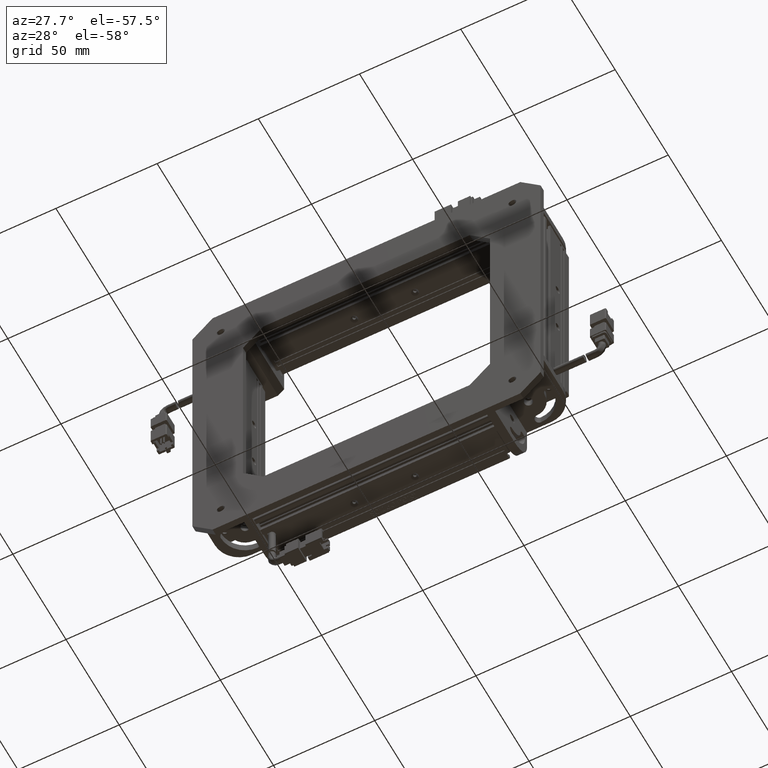
[diagram: clean part render]
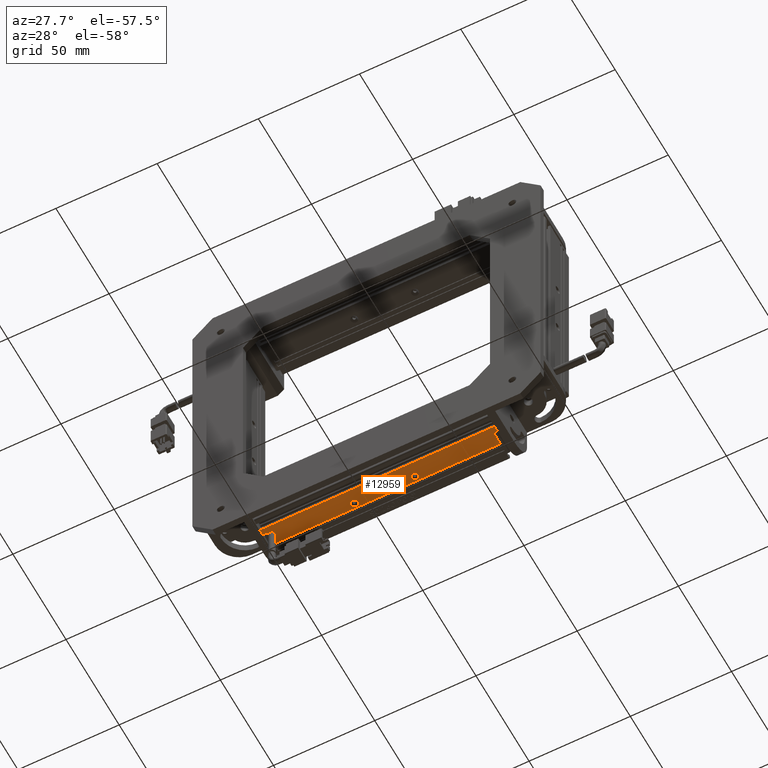
[diagram: same view with one face highlighted and labeled with its STEP entity id]
A machine part, auxiliary view. The second image highlights one B-rep face of the part: STEP entity #12959.
In plain terms, the highlighted planar face has unit normal (0, 0, 1).
Its self-contained STEP definition (entity closure, byte-faithful):
#2895 = DIRECTION ( 'NONE',  ( -1.003956566252521000E-014, -5.551115123125887500E-017, -1.000000000000000000 ) ) ;
#3169 = EDGE_CURVE ( 'NONE', #122555, #135468, #104343, .T. ) ;
#6396 = LINE ( 'NONE', #10045, #114449 ) ;
#6655 = DIRECTION ( 'NONE',  ( 1.000000000000000000, -8.101325669373171900E-016, -1.003956566252521000E-014 ) ) ;
#7725 = VERTEX_POINT ( 'NONE', #17122 ) ;
#8130 = VERTEX_POINT ( 'NONE', #74053 ) ;
#9738 = EDGE_CURVE ( 'NONE', #36482, #61213, #125328, .T. ) ;
#10045 = CARTESIAN_POINT ( 'NONE',  ( -58.00000000000089500, -2.506934854693828800, -85.49999999999916200 ) ) ;
#10047 = ORIENTED_EDGE ( 'NONE', *, *, #42712, .F. ) ;
#11180 = ORIENTED_EDGE ( 'NONE', *, *, #24090, .F. ) ;
#12082 = VECTOR ( 'NONE', #110103, 1000.000000000000000 ) ;
#12959 = ADVANCED_FACE ( 'NONE', ( #130936, #50649, #103095 ), #34821, .F. ) ;
#13569 = CARTESIAN_POINT ( 'NONE',  ( -56.00000000000090900, -2.506934854693830600, -85.49999999999919000 ) ) ;
#14313 = CARTESIAN_POINT ( 'NONE',  ( 57.99999999999910500, -2.506934854693923000, -85.50000000000032700 ) ) ;
#14409 = VERTEX_POINT ( 'NONE', #91813 ) ;
#16311 = ORIENTED_EDGE ( 'NONE', *, *, #23680, .F. ) ;
#16888 = EDGE_CURVE ( 'NONE', #93573, #57633, #92367, .T. ) ;
#17122 = CARTESIAN_POINT ( 'NONE',  ( 16.80000000005887600, 14.10000000000004200, -85.49999999990851100 ) ) ;
#17136 = AXIS2_PLACEMENT_3D ( 'NONE', #65618, #2895, #76196 ) ;
#17560 = CARTESIAN_POINT ( 'NONE',  ( -58.00000000000088800, 7.200000000000105900, -85.49999999999916200 ) ) ;
#21406 = DIRECTION ( 'NONE',  ( -1.003956566252521000E-014, -5.551115123125887500E-017, -1.000000000000000000 ) ) ;
#21505 = EDGE_LOOP ( 'NONE', ( #126505, #135773, #121589, #16311, #11180, #126447, #69433, #80629, #31760, #118261, #37792, #30909 ) ) ;
#23680 = EDGE_CURVE ( 'NONE', #88825, #57633, #90757, .T. ) ;
#24090 = EDGE_CURVE ( 'NONE', #58901, #88825, #103606, .T. ) ;
#24568 = CARTESIAN_POINT ( 'NONE',  ( 57.99999999999910500, -2.506934854693923000, -85.50000000000032700 ) ) ;
#24834 = DIRECTION ( 'NONE',  ( 1.000000000000000000, -8.101325669373171900E-016, -1.003956566252521000E-014 ) ) ;
#25133 = AXIS2_PLACEMENT_3D ( 'NONE', #45668, #118878, #56197 ) ;
#25765 = CARTESIAN_POINT ( 'NONE',  ( 14.99999999999911700, 14.10000000000004400, -85.49999999990849600 ) ) ;
#25842 = EDGE_CURVE ( 'NONE', #34037, #46350, #6396, .T. ) ;
#26061 = VECTOR ( 'NONE', #59420, 1000.000000000000000 ) ;
#27950 = EDGE_LOOP ( 'NONE', ( #130006, #120719 ) ) ;
#29985 = CARTESIAN_POINT ( 'NONE',  ( -56.00000000000088800, 13.55000000000010600, -85.49999999999917600 ) ) ;
#30909 = ORIENTED_EDGE ( 'NONE', *, *, #3169, .F. ) ;
#31416 = VERTEX_POINT ( 'NONE', #107962 ) ;
#31760 = ORIENTED_EDGE ( 'NONE', *, *, #101704, .F. ) ;
#31903 = CARTESIAN_POINT ( 'NONE',  ( 57.99999999999912600, 9.900000000000007500, -85.50000000000032700 ) ) ;
#31924 = CARTESIAN_POINT ( 'NONE',  ( -56.00000000000090900, -2.506934854693830600, -85.49999999999919000 ) ) ;
#33230 = CARTESIAN_POINT ( 'NONE',  ( 55.99999999999913300, 16.40000000000001300, -85.50000000000031300 ) ) ;
#34037 = VERTEX_POINT ( 'NONE', #72678 ) ;
#34821 = PLANE ( 'NONE',  #97580 ) ;
#35387 = AXIS2_PLACEMENT_3D ( 'NONE', #108241, #45519, #118739 ) ;
#36222 = DIRECTION ( 'NONE',  ( -1.000000000000000000, 9.637352643995668300E-016, 7.709882115196534600E-015 ) ) ;
#36482 = VERTEX_POINT ( 'NONE', #132180 ) ;
#37311 = CARTESIAN_POINT ( 'NONE',  ( -56.00000000000088800, 13.55000000000010600, -85.49999999999917600 ) ) ;
#37792 = ORIENTED_EDGE ( 'NONE', *, *, #86611, .T. ) ;
#42712 = EDGE_CURVE ( 'NONE', #61213, #36482, #134880, .T. ) ;
#43490 = LINE ( 'NONE', #119293, #99239 ) ;
#45084 = AXIS2_PLACEMENT_3D ( 'NONE', #84159, #21406, #94724 ) ;
#45092 = DIRECTION ( 'NONE',  ( -8.101325669373166000E-016, -1.000000000000000000, 5.551115123126701000E-017 ) ) ;
#45519 = DIRECTION ( 'NONE',  ( -1.003956566252521000E-014, -5.551115123125887500E-017, -1.000000000000000000 ) ) ;
#45668 = CARTESIAN_POINT ( 'NONE',  ( -54.45000000000088400, 11.90000000000010200, -85.49999999999919000 ) ) ;
#46350 = VERTEX_POINT ( 'NONE', #17560 ) ;
#47206 = VERTEX_POINT ( 'NONE', #114059 ) ;
#47883 = AXIS2_PLACEMENT_3D ( 'NONE', #25765, #99040, #36222 ) ;
#50649 = FACE_OUTER_BOUND ( 'NONE', #21505, .T. ) ;
#52077 = DIRECTION ( 'NONE',  ( -8.101325669373166000E-016, -1.000000000000000000, 5.551115123126701000E-017 ) ) ;
#52503 = EDGE_CURVE ( 'NONE', #122555, #8130, #106582, .T. ) ;
#53872 = LINE ( 'NONE', #69544, #26061 ) ;
#56197 = DIRECTION ( 'NONE',  ( 0.0000000000000000000, 1.000000000000000000, 0.0000000000000000000 ) ) ;
#57633 = VERTEX_POINT ( 'NONE', #29985 ) ;
#57912 = LINE ( 'NONE', #122024, #113575 ) ;
#58175 = EDGE_CURVE ( 'NONE', #14409, #58901, #131545, .T. ) ;
#58901 = VERTEX_POINT ( 'NONE', #33230 ) ;
#59420 = DIRECTION ( 'NONE',  ( 1.000000000000000000, -8.101325669373171900E-016, -1.003956566252521000E-014 ) ) ;
#61213 = VERTEX_POINT ( 'NONE', #87057 ) ;
#65618 = CARTESIAN_POINT ( 'NONE',  ( -15.00000000000088300, 14.10000000000007200, -85.49999999997867000 ) ) ;
#69224 = VECTOR ( 'NONE', #97838, 1000.000000000000000 ) ;
#69433 = ORIENTED_EDGE ( 'NONE', *, *, #85864, .T. ) ;
#69544 = CARTESIAN_POINT ( 'NONE',  ( 57.99999999999911200, 9.900000000000009200, -85.50000000000032700 ) ) ;
#70005 = CIRCLE ( 'NONE', #47883, 1.800000000059753800 ) ;
#70323 = CARTESIAN_POINT ( 'NONE',  ( 57.99999999999911900, 16.40000000000001300, -85.50000000000032700 ) ) ;
#72678 = CARTESIAN_POINT ( 'NONE',  ( -58.00000000000088800, 9.900000000000101600, -85.49999999999916200 ) ) ;
#74053 = CARTESIAN_POINT ( 'NONE',  ( -54.45000000000088400, 10.25000000000010100, -85.49999999999919000 ) ) ;
#75281 = CARTESIAN_POINT ( 'NONE',  ( -56.00000000000090200, 9.900000000000099800, -85.49999999999919000 ) ) ;
#76196 = DIRECTION ( 'NONE',  ( -1.000000000000000000, 9.637352644373061300E-016, 7.709882115498449000E-015 ) ) ;
#80629 = ORIENTED_EDGE ( 'NONE', *, *, #122374, .F. ) ;
#84159 = CARTESIAN_POINT ( 'NONE',  ( -15.00000000000088300, 14.10000000000007200, -85.49999999997867000 ) ) ;
#85706 = VERTEX_POINT ( 'NONE', #31903 ) ;
#85864 = EDGE_CURVE ( 'NONE', #14409, #85706, #43490, .T. ) ;
#86078 = ORIENTED_EDGE ( 'NONE', *, *, #9738, .F. ) ;
#86611 = EDGE_CURVE ( 'NONE', #34037, #135468, #53872, .T. ) ;
#86887 = EDGE_CURVE ( 'NONE', #93573, #8130, #96367, .T. ) ;
#87057 = CARTESIAN_POINT ( 'NONE',  ( -13.20000000001161000, 14.10000000000007100, -85.49999999997868400 ) ) ;
#87548 = DIRECTION ( 'NONE',  ( 1.003956566252521000E-014, 5.551115123125887500E-017, 1.000000000000000000 ) ) ;
#88196 = DIRECTION ( 'NONE',  ( 1.000000000000000000, -8.101325669373171900E-016, -1.003956566252521000E-014 ) ) ;
#88825 = VERTEX_POINT ( 'NONE', #112360 ) ;
#90757 = LINE ( 'NONE', #31924, #115205 ) ;
#91813 = CARTESIAN_POINT ( 'NONE',  ( 55.99999999999912600, 9.900000000000009200, -85.50000000000029800 ) ) ;
#92367 = LINE ( 'NONE', #37311, #12082 ) ;
#93573 = VERTEX_POINT ( 'NONE', #127375 ) ;
#94724 = DIRECTION ( 'NONE',  ( -1.000000000000000000, 9.637352644373061300E-016, 7.709882115498449000E-015 ) ) ;
#96367 = CIRCLE ( 'NONE', #25133, 1.650000000000000400 ) ;
#97580 = AXIS2_PLACEMENT_3D ( 'NONE', #14313, #87548, #24834 ) ;
#97838 = DIRECTION ( 'NONE',  ( 8.101325669373166000E-016, 1.000000000000000000, -5.551115123126701000E-017 ) ) ;
#98150 = CIRCLE ( 'NONE', #35387, 1.800000000059753800 ) ;
#99040 = DIRECTION ( 'NONE',  ( -1.003956566252521000E-014, -5.551115123125887500E-017, -1.000000000000000000 ) ) ;
#99239 = VECTOR ( 'NONE', #88196, 1000.000000000000000 ) ;
#100973 = CARTESIAN_POINT ( 'NONE',  ( -56.00000000000090200, 10.25000000000010100, -85.49999999999917600 ) ) ;
#101704 = EDGE_CURVE ( 'NONE', #46350, #31416, #57912, .T. ) ;
#101902 = DIRECTION ( 'NONE',  ( -1.000000000000000000, 8.101325669373171900E-016, 1.003956566252521000E-014 ) ) ;
#103095 = FACE_BOUND ( 'NONE', #27950, .T. ) ;
#103101 = CARTESIAN_POINT ( 'NONE',  ( 55.99999999999911200, -2.506934854693921200, -85.50000000000031300 ) ) ;
#103606 = LINE ( 'NONE', #70323, #128104 ) ;
#104343 = LINE ( 'NONE', #13569, #122319 ) ;
#106220 = EDGE_LOOP ( 'NONE', ( #86078, #10047 ) ) ;
#106582 = LINE ( 'NONE', #106738, #127805 ) ;
#106738 = CARTESIAN_POINT ( 'NONE',  ( -56.00000000000089500, 10.25000000000010100, -85.49999999999917600 ) ) ;
#107962 = CARTESIAN_POINT ( 'NONE',  ( 57.99999999999911200, 7.200000000000011700, -85.50000000000032700 ) ) ;
#108241 = CARTESIAN_POINT ( 'NONE',  ( 14.99999999999911700, 14.10000000000004400, -85.49999999990849600 ) ) ;
#110103 = DIRECTION ( 'NONE',  ( -1.000000000000000000, 3.048485439165441600E-015, 1.003956566252521000E-014 ) ) ;
#112360 = CARTESIAN_POINT ( 'NONE',  ( -56.00000000000088800, 16.40000000000010200, -85.49999999999919000 ) ) ;
#113575 = VECTOR ( 'NONE', #6655, 1000.000000000000000 ) ;
#114059 = CARTESIAN_POINT ( 'NONE',  ( 13.19999999993936700, 14.10000000000004600, -85.49999999990848200 ) ) ;
#114449 = VECTOR ( 'NONE', #114796, 1000.000000000000000 ) ;
#114796 = DIRECTION ( 'NONE',  ( -8.101325669373166000E-016, -1.000000000000000000, 5.551115123126701000E-017 ) ) ;
#115205 = VECTOR ( 'NONE', #52077, 1000.000000000000000 ) ;
#116753 = DIRECTION ( 'NONE',  ( 1.000000000000000000, 3.090438691767449400E-016, -1.003956566252521000E-014 ) ) ;
#118261 = ORIENTED_EDGE ( 'NONE', *, *, #25842, .F. ) ;
#118739 = DIRECTION ( 'NONE',  ( -1.000000000000000000, 9.637352643995668300E-016, 7.709882115196534600E-015 ) ) ;
#118878 = DIRECTION ( 'NONE',  ( -1.003956566252521000E-014, 5.132506441709727500E-016, -1.000000000000000000 ) ) ;
#119293 = CARTESIAN_POINT ( 'NONE',  ( 57.99999999999911200, 9.900000000000009200, -85.50000000000032700 ) ) ;
#120719 = ORIENTED_EDGE ( 'NONE', *, *, #130653, .F. ) ;
#121589 = ORIENTED_EDGE ( 'NONE', *, *, #16888, .T. ) ;
#122024 = CARTESIAN_POINT ( 'NONE',  ( 57.99999999999911200, 7.200000000000011700, -85.50000000000032700 ) ) ;
#122319 = VECTOR ( 'NONE', #45092, 1000.000000000000000 ) ;
#122374 = EDGE_CURVE ( 'NONE', #31416, #85706, #124823, .T. ) ;
#122555 = VERTEX_POINT ( 'NONE', #100973 ) ;
#124823 = LINE ( 'NONE', #24568, #69224 ) ;
#125285 = EDGE_CURVE ( 'NONE', #47206, #7725, #98150, .T. ) ;
#125328 = CIRCLE ( 'NONE', #17136, 1.799999999989266900 ) ;
#126447 = ORIENTED_EDGE ( 'NONE', *, *, #58175, .F. ) ;
#126505 = ORIENTED_EDGE ( 'NONE', *, *, #52503, .T. ) ;
#127375 = CARTESIAN_POINT ( 'NONE',  ( -54.45000000000087700, 13.55000000000010600, -85.49999999999919000 ) ) ;
#127805 = VECTOR ( 'NONE', #116753, 1000.000000000000000 ) ;
#128104 = VECTOR ( 'NONE', #101902, 1000.000000000000000 ) ;
#128186 = VECTOR ( 'NONE', #134676, 1000.000000000000000 ) ;
#130006 = ORIENTED_EDGE ( 'NONE', *, *, #125285, .F. ) ;
#130653 = EDGE_CURVE ( 'NONE', #7725, #47206, #70005, .T. ) ;
#130936 = FACE_BOUND ( 'NONE', #106220, .T. ) ;
#131545 = LINE ( 'NONE', #103101, #128186 ) ;
#132180 = CARTESIAN_POINT ( 'NONE',  ( -16.79999999999014500, 14.10000000000007400, -85.49999999997867000 ) ) ;
#134676 = DIRECTION ( 'NONE',  ( 8.101325669373166000E-016, 1.000000000000000000, -5.551115123126701000E-017 ) ) ;
#134880 = CIRCLE ( 'NONE', #45084, 1.799999999989266900 ) ;
#135468 = VERTEX_POINT ( 'NONE', #75281 ) ;
#135773 = ORIENTED_EDGE ( 'NONE', *, *, #86887, .F. ) ;